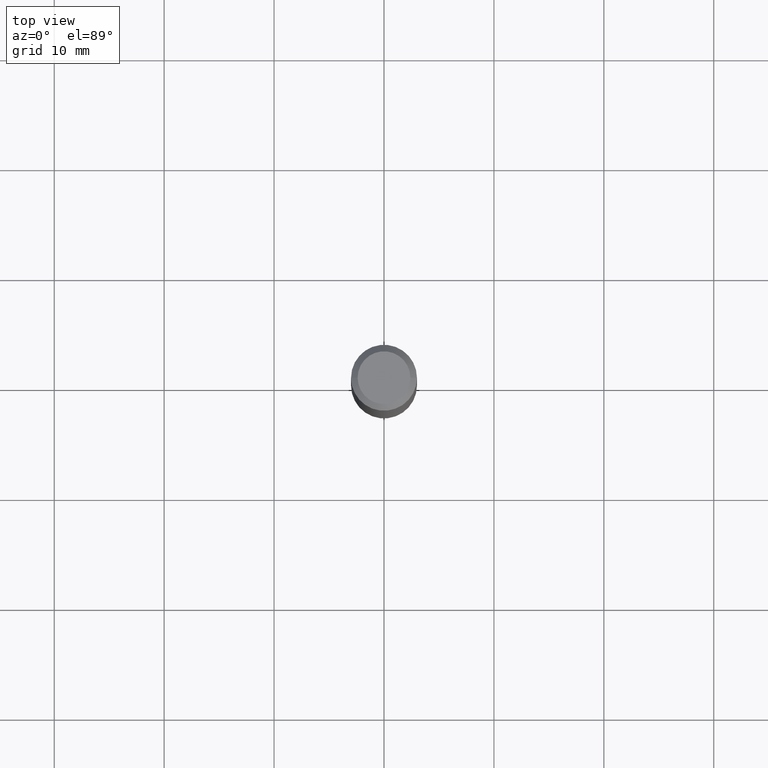
[diagram: clean part render]
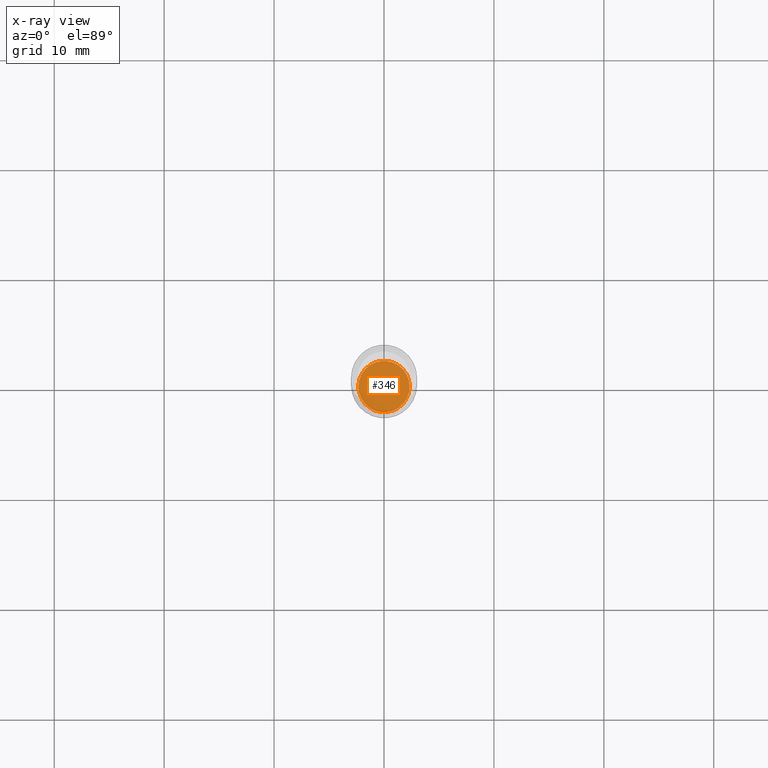
[diagram: x-ray — body ghosted, one internal face saturated and labeled with its STEP entity id]
A machine part, top view, then the same camera in x-ray: the body is ghosted and one INTERNAL B-rep face — a face not visible from any outside direction — is saturated and labeled: STEP entity #346.
In plain terms, the highlighted planar face has unit normal (-0, 0, 1).
Its self-contained STEP definition (entity closure, byte-faithful):
#10 = VERTEX_POINT ( 'NONE', #199 ) ;
#89 = AXIS2_PLACEMENT_3D ( 'NONE', #385, #114, #268 ) ;
#97 = DIRECTION ( 'NONE',  ( 1.000000000000000000, -6.982962677686269866E-15, 0.000000000000000000 ) ) ;
#98 = CARTESIAN_POINT ( 'NONE',  ( -0.09199999999999999845, -5.762739897389719472E-15, -1.838499999999999801 ) ) ;
#114 = DIRECTION ( 'NONE',  ( -2.438088387897960049E-29, 3.491481338843145188E-15, 1.000000000000000000 ) ) ;
#120 = EDGE_LOOP ( 'NONE', ( #262, #148 ) ) ;
#124 = CARTESIAN_POINT ( 'NONE',  ( 4.495994400171372866E-29, -6.419088441463122636E-15, -1.838499999999999801 ) ) ;
#148 = ORIENTED_EDGE ( 'NONE', *, *, #487, .F. ) ;
#154 = CIRCLE ( 'NONE', #267, 0.09199999999999999845 ) ;
#157 = FACE_OUTER_BOUND ( 'NONE', #120, .T. ) ;
#167 = CARTESIAN_POINT ( 'NONE',  ( 4.495994400171372866E-29, -6.419088441463122636E-15, -1.838499999999999801 ) ) ;
#187 = VERTEX_POINT ( 'NONE', #98 ) ;
#199 = CARTESIAN_POINT ( 'NONE',  ( 0.09199999999999999845, -7.061521007810258826E-15, -1.838499999999999801 ) ) ;
#208 = DIRECTION ( 'NONE',  ( 1.000000000000000000, -6.982962677686269866E-15, 0.000000000000000000 ) ) ;
#243 = AXIS2_PLACEMENT_3D ( 'NONE', #124, #468, #97 ) ;
#262 = ORIENTED_EDGE ( 'NONE', *, *, #470, .F. ) ;
#267 = AXIS2_PLACEMENT_3D ( 'NONE', #167, #288, #208 ) ;
#268 = DIRECTION ( 'NONE',  ( 1.000000000000000000, -6.982962677686265922E-15, 4.876176775795935793E-29 ) ) ;
#288 = DIRECTION ( 'NONE',  ( -2.445468806185136597E-29, 3.491481338843145583E-15, 1.000000000000000000 ) ) ;
#346 = ADVANCED_FACE ( 'NONE', ( #157 ), #453, .F. ) ;
#385 = CARTESIAN_POINT ( 'NONE',  ( 4.495994400171372866E-29, -6.419088441463122636E-15, -1.838499999999999801 ) ) ;
#449 = CIRCLE ( 'NONE', #243, 0.09199999999999999845 ) ;
#453 = PLANE ( 'NONE',  #89 ) ;
#468 = DIRECTION ( 'NONE',  ( -2.445468806185136597E-29, 3.491481338843145583E-15, 1.000000000000000000 ) ) ;
#470 = EDGE_CURVE ( 'NONE', #10, #187, #154, .T. ) ;
#487 = EDGE_CURVE ( 'NONE', #187, #10, #449, .T. ) ;